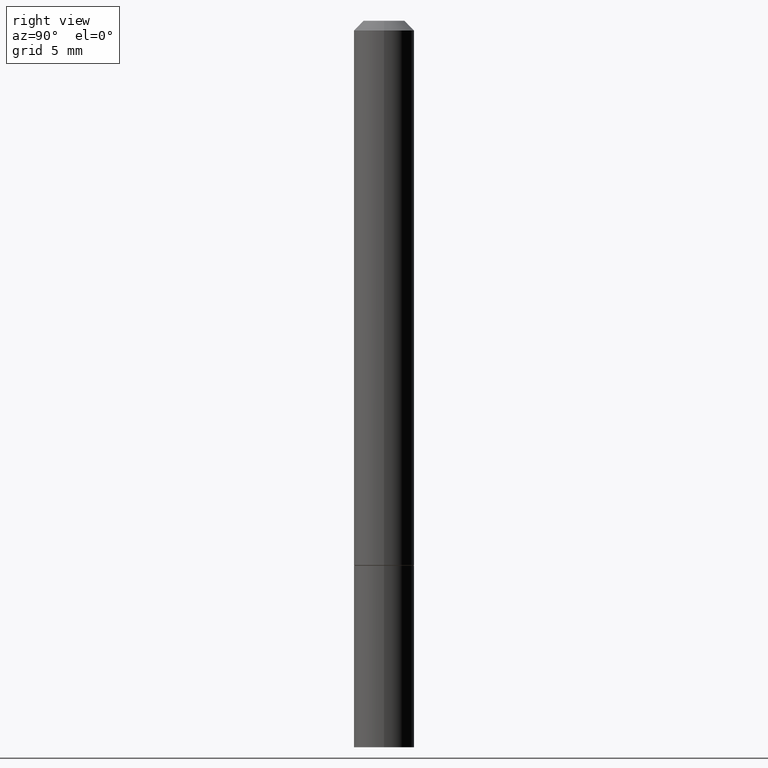
[diagram: clean part render]
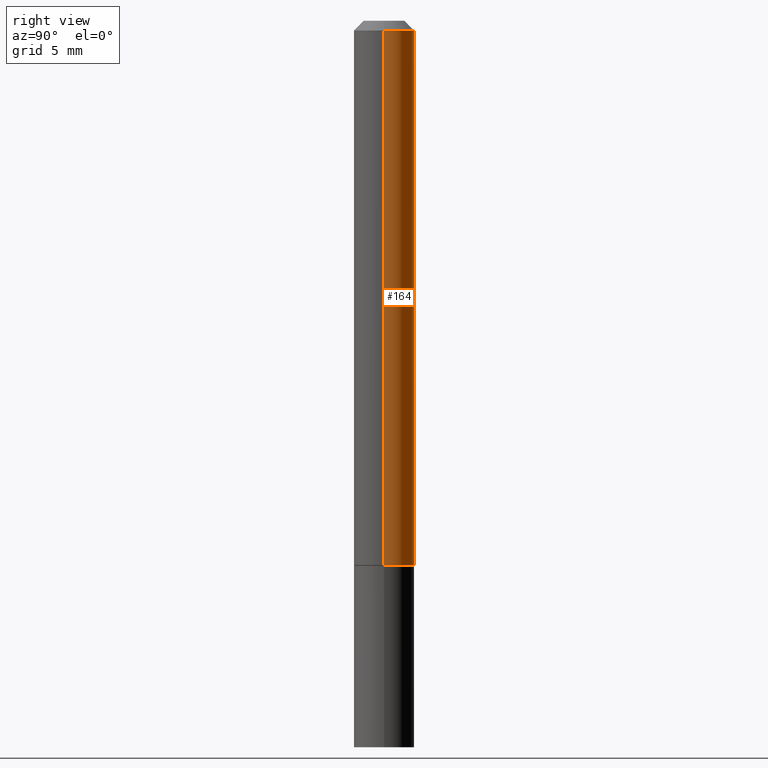
[diagram: same view with one face highlighted and labeled with its STEP entity id]
A machine part, right view. The second image highlights one B-rep face of the part: STEP entity #164.
In plain terms, the highlighted cylindrical surface (edge-blend (fillet) strip) has radius 1.5875 mm, axis along (-0, 0, 1).
Its self-contained STEP definition (entity closure, byte-faithful):
#3 = AXIS2_PLACEMENT_3D ( 'NONE', #28, #285, #359 ) ;
#14 = VERTEX_POINT ( 'NONE', #17 ) ;
#17 = CARTESIAN_POINT ( 'NONE',  ( 0.06250000000000001388, -4.360860192215086309E-15, -1.123999999999999888 ) ) ;
#28 = CARTESIAN_POINT ( 'NONE',  ( 0.000000000000000000, 0.000000000000000000, 0.000000000000000000 ) ) ;
#85 = CYLINDRICAL_SURFACE ( 'NONE', #3, 0.06249999999999995143 ) ;
#87 = ORIENTED_EDGE ( 'NONE', *, *, #339, .T. ) ;
#88 = LINE ( 'NONE', #202, #325 ) ;
#113 = CARTESIAN_POINT ( 'NONE',  ( 0.06249999999999988204, -4.986107516375831334E-16, -0.02000000000000008715 ) ) ;
#131 = ORIENTED_EDGE ( 'NONE', *, *, #189, .F. ) ;
#137 = EDGE_CURVE ( 'NONE', #160, #163, #88, .T. ) ;
#144 = DIRECTION ( 'NONE',  ( 1.000000000000000000, -6.982962677686266711E-15, 0.000000000000000000 ) ) ;
#160 = VERTEX_POINT ( 'NONE', #253 ) ;
#163 = VERTEX_POINT ( 'NONE', #333 ) ;
#164 = ADVANCED_FACE ( 'NONE', ( #225 ), #85, .T. ) ;
#170 = DIRECTION ( 'NONE',  ( -2.445468806185136597E-29, 3.491481338843145583E-15, 1.000000000000000000 ) ) ;
#176 = DIRECTION ( 'NONE',  ( -2.445468806185136877E-29, 3.491481338843145188E-15, 1.000000000000000000 ) ) ;
#179 = CARTESIAN_POINT ( 'NONE',  ( 0.06249999999999995143, -4.364351673553913243E-16, 3.047610484872457418E-30 ) ) ;
#184 = VERTEX_POINT ( 'NONE', #113 ) ;
#189 = EDGE_CURVE ( 'NONE', #184, #163, #320, .T. ) ;
#202 = CARTESIAN_POINT ( 'NONE',  ( -0.06249999999999995143, 4.440892098500622710E-16, -3.074334431409313661E-30 ) ) ;
#204 = LINE ( 'NONE', #179, #251 ) ;
#224 = EDGE_LOOP ( 'NONE', ( #87, #275, #131, #330 ) ) ;
#225 = FACE_OUTER_BOUND ( 'NONE', #224, .T. ) ;
#228 = CARTESIAN_POINT ( 'NONE',  ( 4.890937612370294178E-31, -6.982962677686321191E-17, -0.02000000000000008715 ) ) ;
#238 = DIRECTION ( 'NONE',  ( -2.445468806185136597E-29, 3.491481338843145583E-15, 1.000000000000000000 ) ) ;
#251 = VECTOR ( 'NONE', #176, 39.37007874015748143 ) ;
#253 = CARTESIAN_POINT ( 'NONE',  ( -0.06250000000000001388, -1.553038115968214380E-15, -1.123999999999999888 ) ) ;
#263 = AXIS2_PLACEMENT_3D ( 'NONE', #324, #238, #345 ) ;
#275 = ORIENTED_EDGE ( 'NONE', *, *, #137, .T. ) ;
#285 = DIRECTION ( 'NONE',  ( -2.445468806185136597E-29, 3.491481338843145583E-15, 1.000000000000000000 ) ) ;
#289 = EDGE_CURVE ( 'NONE', #14, #184, #204, .T. ) ;
#315 = DIRECTION ( 'NONE',  ( -2.445468806185136877E-29, 3.491481338843145188E-15, 1.000000000000000000 ) ) ;
#320 = CIRCLE ( 'NONE', #334, 0.06249999999999988204 ) ;
#324 = CARTESIAN_POINT ( 'NONE',  ( 2.748706938152093068E-29, -3.924425024859694639E-15, -1.123999999999999888 ) ) ;
#325 = VECTOR ( 'NONE', #315, 39.37007874015748143 ) ;
#330 = ORIENTED_EDGE ( 'NONE', *, *, #289, .F. ) ;
#333 = CARTESIAN_POINT ( 'NONE',  ( -0.06249999999999988204, 3.666055405785276317E-16, -0.02000000000000008715 ) ) ;
#334 = AXIS2_PLACEMENT_3D ( 'NONE', #228, #170, #144 ) ;
#339 = EDGE_CURVE ( 'NONE', #14, #160, #363, .T. ) ;
#345 = DIRECTION ( 'NONE',  ( 1.000000000000000000, -6.982962677686269077E-15, 0.000000000000000000 ) ) ;
#359 = DIRECTION ( 'NONE',  ( 1.000000000000000000, -6.982962677686266711E-15, 4.876176775795935793E-29 ) ) ;
#363 = CIRCLE ( 'NONE', #263, 0.06250000000000001388 ) ;